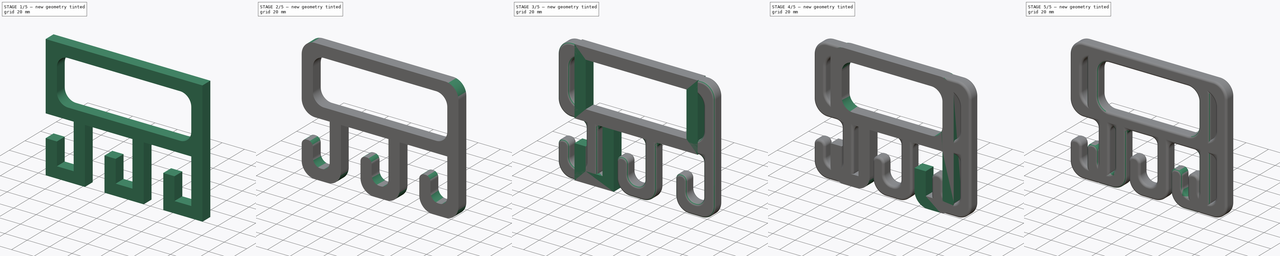
[diagram: build sequence overview — one tinted view per stage of 5, left to right]
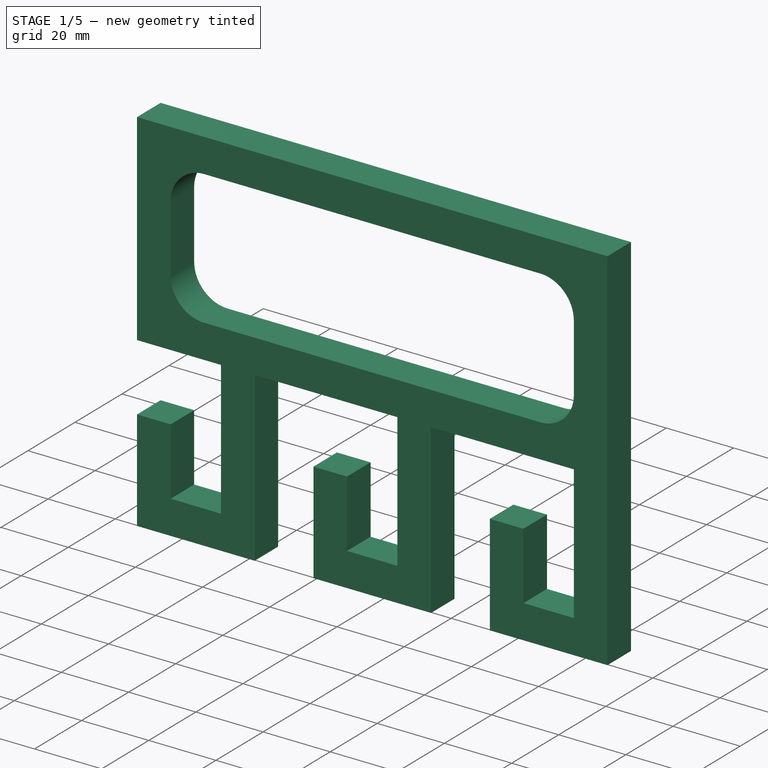
[diagram: stage 1 of 5 — iso view after this stage's code; geometry added in this stage tinted green]
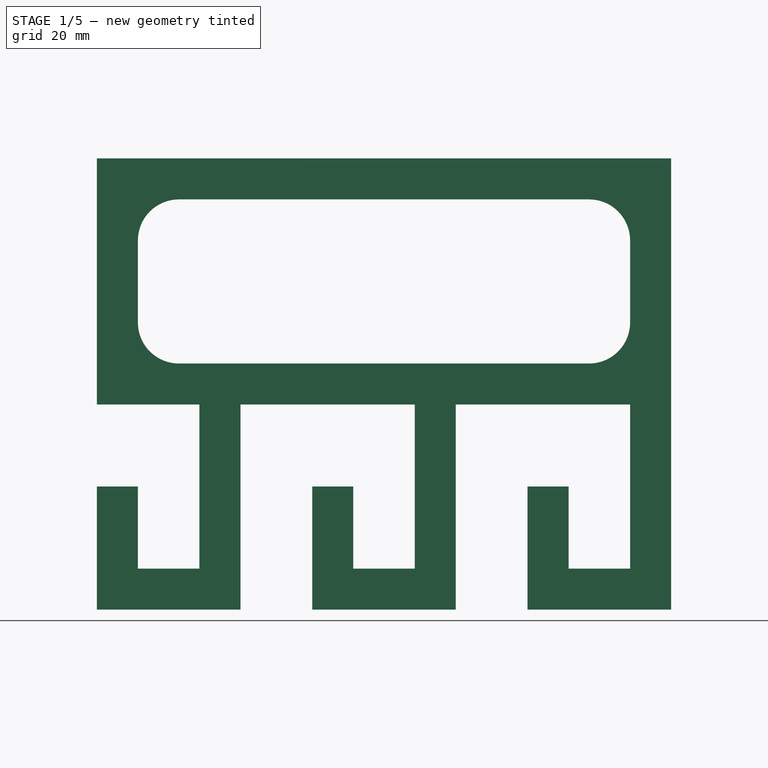
[diagram: stage 1 of 5 — front view after this stage's code; geometry added in this stage tinted green]
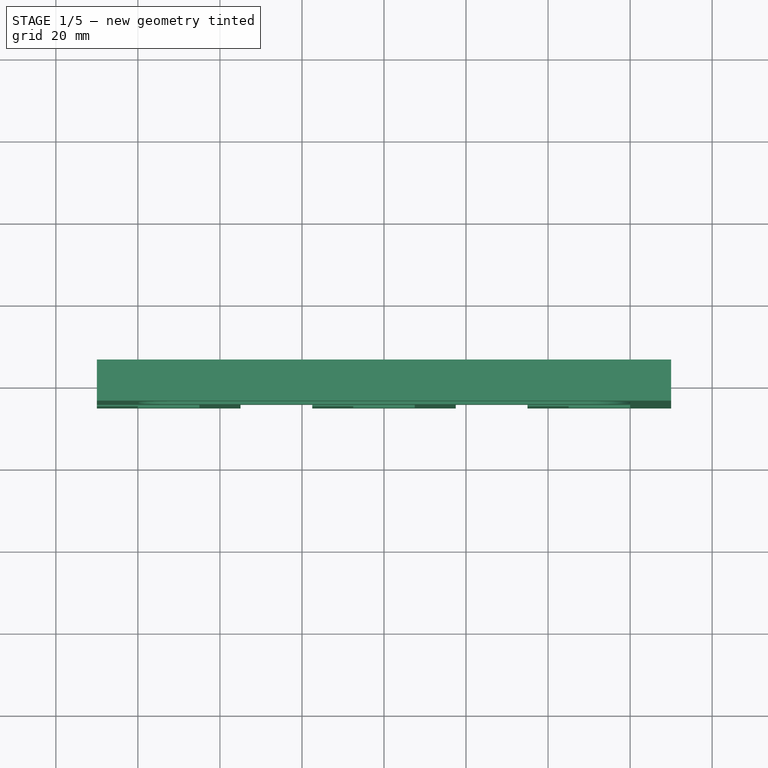
[diagram: stage 1 of 5 — top view after this stage's code; geometry added in this stage tinted green]
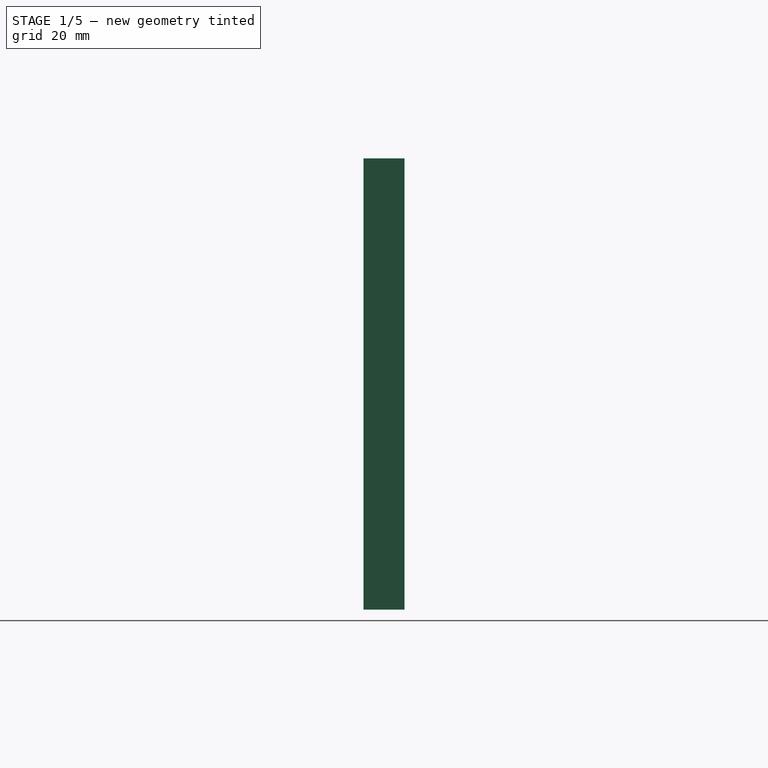
[diagram: stage 1 of 5 — right view after this stage's code; geometry added in this stage tinted green]
FCSTD DOCUMENT  (FreeCAD 0.18.4R)
Label: Shopping Handle x2 x3
Comment: Bag Holder - Shopping Handle\nby ivanseidel July 13, 2012\n\nhttps://www.thingiverse.com/thing:26767
License: CreativeCommons Attribution
LicenseURL: http://creativecommons.org/licenses/by/4.0/
objects: PartDesign::Fillet×12, Sketcher::SketchObject×4, PartDesign::Pad×4, PartDesign::LinearPattern×2, PartDesign::Body×2, App::Part×1
note: 28 computed .brp shape members not serialized (recipe doc carries the construction recipe); baked Part::Feature solids carry a one-line shape summary decoded from their .brp

FEATURE [Sketcher::SketchObject] Sketch002
  MapMode = 5
  Placement = pos=(0,0,0) rot=(1,0,0;1.5708rad)
  Support = -> [XZ_Plane002]
  sketch-geometry (12):
    g0: LineSegment StartX=-70 StartY=0 StartZ=0 EndX=70 EndY=0 EndZ=0
    g1: LineSegment StartX=70 StartY=0 StartZ=0 EndX=70 EndY=60 EndZ=0
    g2: LineSegment StartX=70 StartY=60 StartZ=0 EndX=-70 EndY=60 EndZ=0
    g3: LineSegment StartX=-70 StartY=60 StartZ=0 EndX=-70 EndY=0 EndZ=0
    g4: LineSegment StartX=-60 StartY=50 StartZ=0 EndX=60 EndY=50 EndZ=0
    g5: LineSegment StartX=60 StartY=50 StartZ=0 EndX=60 EndY=10 EndZ=0
    g6: LineSegment StartX=60 StartY=10 StartZ=0 EndX=-60 EndY=10 EndZ=0
    g7: LineSegment StartX=-60 StartY=10 StartZ=0 EndX=-60 EndY=50 EndZ=0
    g8: LineSegment [constr] StartX=60 StartY=0 StartZ=0 EndX=60 EndY=10 EndZ=0
    g9: LineSegment [constr] StartX=60 StartY=10 StartZ=0 EndX=70 EndY=10 EndZ=0
    g10: LineSegment [constr] StartX=-70 StartY=50 StartZ=0 EndX=-60 EndY=50 EndZ=0
    g11: LineSegment [constr] StartX=-60 StartY=50 StartZ=0 EndX=-60 EndY=60 EndZ=0
  constraints (35):
    c: Coincident(g0,g1)
    c: Coincident(g1,g2)
    c: Coincident(g2,g3)
    c: Coincident(g3,g0)
    c: Horizontal(g0)
    c: Horizontal(g2)
    c: Vertical(g1)
    c: Vertical(g3)
    c: Symmetric(g0,g0,g-1)
    c: DistanceX(g0,g0) = 140
    c: DistanceY(g3,g3) = 60
    c: Coincident(g4,g5)
    c: Coincident(g5,g6)
    c: Coincident(g6,g7)
    c: Coincident(g7,g4)
    c: Horizontal(g4)
    c: Horizontal(g6)
    c: Vertical(g5)
    c: Vertical(g7)
    c: PointOnObject(g8,g0)
    c: Coincident(g8,g5)
    c: Vertical(g8)
    c: Coincident(g8,g9)
    c: PointOnObject(g9,g1)
    c: Horizontal(g9)
    c: PointOnObject(g10,g3)
    c: Coincident(g10,g4)
    c: Coincident(g10,g11)
    c: PointOnObject(g11,g2)
    c: Vertical(g11)
    c: Horizontal(g10)
    c: Equal(g9,g8)
    c: Equal(g8,g10)
    c: Equal(g10,g11)
    c: DistanceX(g10,g10) = 10
FEATURE [PartDesign::Pad] Pad003
  Length = 10
  Length2 = 100
  Midplane = true
  Placement = pos=(0,0,0) rot=(1,0,0;1.5708rad)
  Profile = -> Sketch002
  Refine = true
  Type = 0
FEATURE [Sketcher::SketchObject] Sketch003
  ExternalGeometry = -> [Pad003]
  MapMode = 5
  Placement = pos=(0,0,0) rot=(1,0,0;1.5708rad)
  Support = -> [XZ_Plane002]
  sketch-geometry (9):
    g0: LineSegment StartX=-35 StartY=0 StartZ=0 EndX=-45 EndY=0 EndZ=0
    g1: LineSegment StartX=-45 StartY=0 StartZ=0 EndX=-45 EndY=-40 EndZ=0
    g2: LineSegment StartX=-45 StartY=-40 StartZ=0 EndX=-60 EndY=-40 EndZ=0
    g3: LineSegment StartX=-60 StartY=-40 StartZ=0 EndX=-60 EndY=-20 EndZ=0
    g4: LineSegment StartX=-60 StartY=-20 StartZ=0 EndX=-70 EndY=-20 EndZ=0
    g5: LineSegment StartX=-70 StartY=-20 StartZ=0 EndX=-70 EndY=-50 EndZ=0
    g6: LineSegment StartX=-70 StartY=-50 StartZ=0 EndX=-35 EndY=-50 EndZ=0
    g7: LineSegment StartX=-35 StartY=-50 StartZ=0 EndX=-35 EndY=0 EndZ=0
    g8: LineSegment [constr] StartX=-45 StartY=-40 StartZ=0 EndX=-45 EndY=-50 EndZ=0
  constraints (28):
    c: PointOnObject(g0,g-1)
    c: Horizontal(g0)
    c: Coincident(g0,g1)
    c: Vertical(g1)
    c: Coincident(g1,g2)
    c: Horizontal(g2)
    c: Coincident(g2,g3)
    c: Vertical(g3)
    c: Coincident(g3,g4)
    c: Horizontal(g4)
    c: Coincident(g4,g5)
    c: Vertical(g5)
    c: Coincident(g5,g6)
    c: Horizontal(g6)
    c: Coincident(g6,g7)
    c: Coincident(g7,g0)
    c: Vertical(g7)
    c: Equal(g4,g0)
    c: DistanceX(g4,g4) = 10
    c: DistanceX(g2,g2) = 15
    c: Coincident(g1,g8)
    c: Vertical(g8)
    c: Equal(g4,g8)
    c: PointOnObject(g8,g6)
    c: Equal(g0,g8)
    c: Vertical(g4,g-3)
    c: DistanceY(g7,g7) = 50
    c: DistanceY(g5,g5) = 30
FEATURE [PartDesign::Pad] Pad002
  BaseFeature = -> Pad003
  Length = 10
  Length2 = 100
  Midplane = true
  Placement = pos=(0,0,0) rot=(1,0,0;1.5708rad)
  Profile = -> Sketch003
  Refine = true
  Type = 0
FEATURE [PartDesign::LinearPattern] LinearPattern001
  BaseFeature = -> Pad002
  Direction = -> Sketch003 [H_Axis]
  Length = 105
  Occurrences = 3
  Originals = -> [Pad002]
  Placement = pos=(0,0,0) rot=(1,0,0;1.5708rad)
  Refine = true
FEATURE [PartDesign::Fillet] Fillet006
  Base = -> LinearPattern001 [Edge87,Edge83,Edge82,Edge85]
  BaseFeature = -> LinearPattern001
  Placement = pos=(0,0,0) rot=(1,0,0;1.5708rad)
  Radius = 10
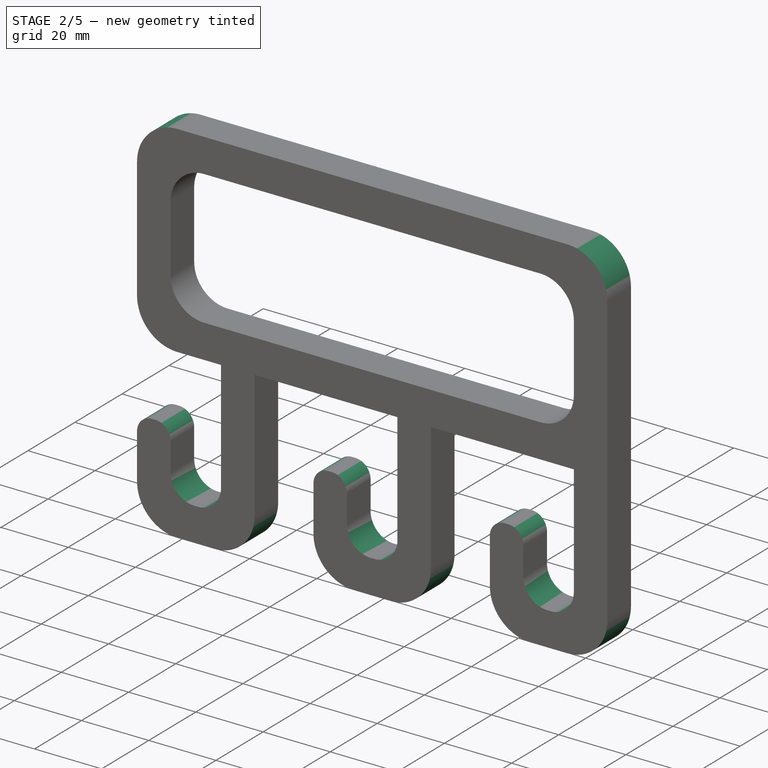
[diagram: stage 2 of 5 — iso view after this stage's code; geometry added in this stage tinted green]
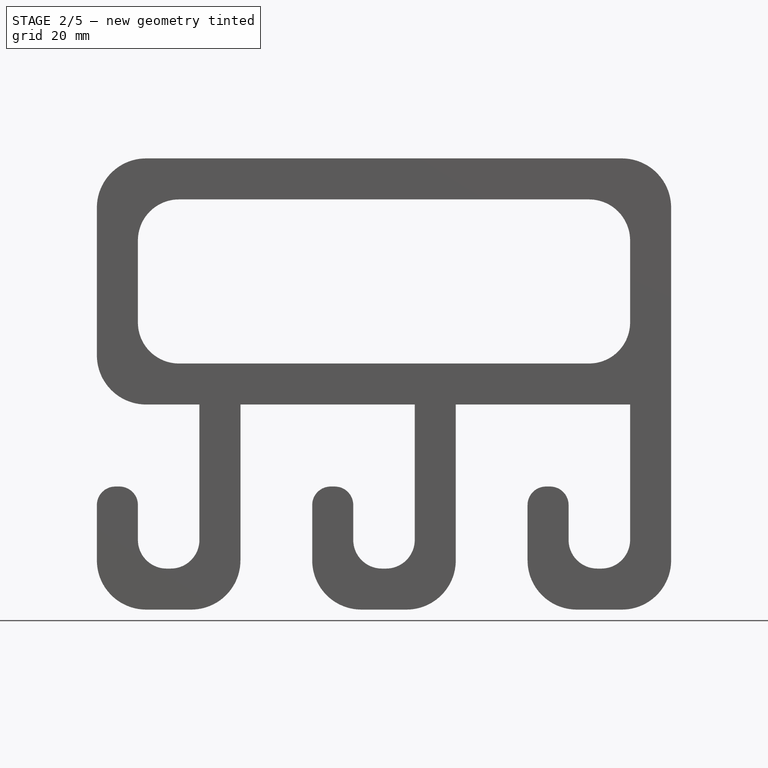
[diagram: stage 2 of 5 — front view after this stage's code; geometry added in this stage tinted green]
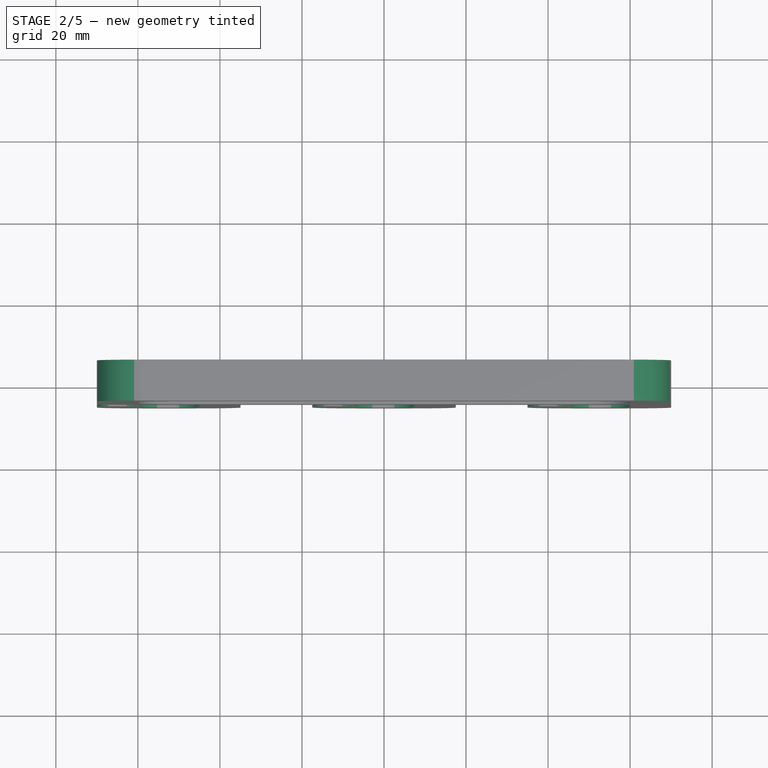
[diagram: stage 2 of 5 — top view after this stage's code; geometry added in this stage tinted green]
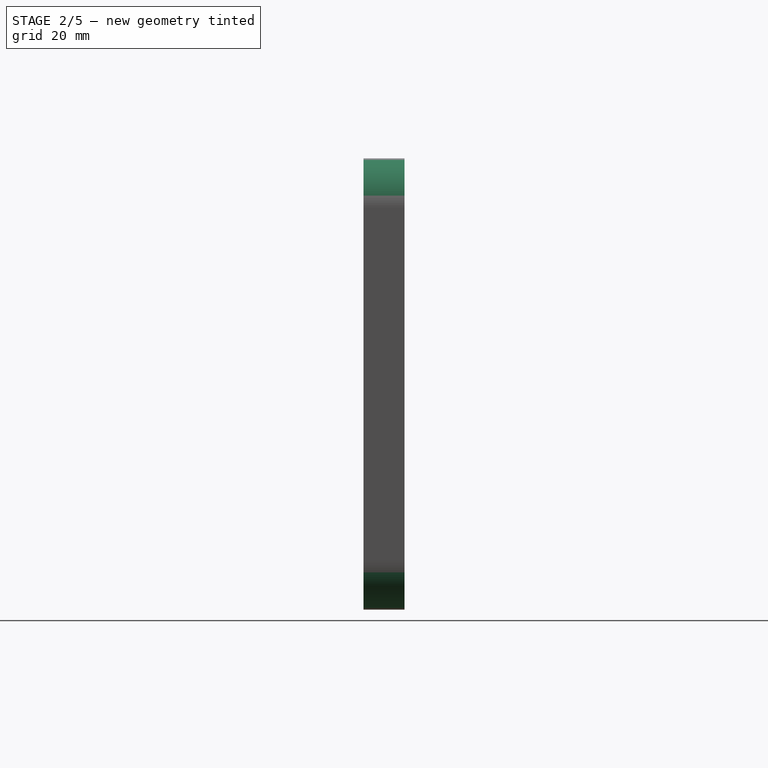
[diagram: stage 2 of 5 — right view after this stage's code; geometry added in this stage tinted green]
FEATURE [PartDesign::Fillet] Fillet007
  Base = -> Fillet006 [Edge90,Edge92,Edge76,Edge74,Edge60,Edge59,Edge56,Edge54,Edge53]
  BaseFeature = -> Fillet006
  Placement = pos=(0,0,0) rot=(1,0,0;1.5708rad)
  Radius = 12
FEATURE [PartDesign::Fillet] Fillet008
  Base = -> Fillet007 [Edge95,Edge91,Edge93,Edge89,Edge49,Edge53]
  BaseFeature = -> Fillet007
  Placement = pos=(0,0,0) rot=(1,0,0;1.5708rad)
  Radius = 7
FEATURE [PartDesign::Fillet] Fillet009
  Base = -> Fillet008 [Edge69,Edge65,Edge117,Edge113,Edge95,Edge99]
  BaseFeature = -> Fillet008
  Placement = pos=(0,0,0) rot=(1,0,0;1.5708rad)
  Radius = 4.5
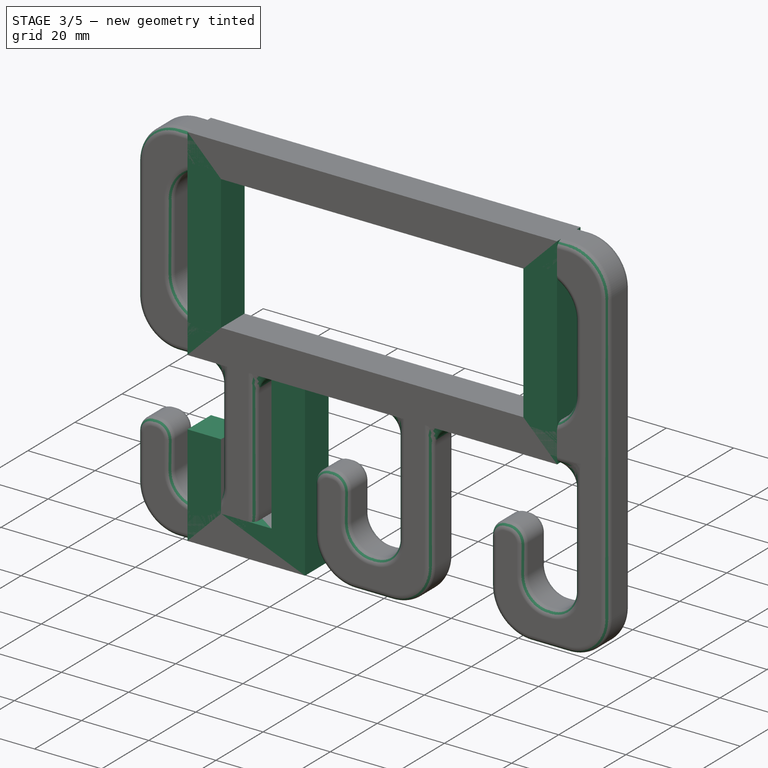
[diagram: stage 3 of 5 — iso view after this stage's code; geometry added in this stage tinted green]
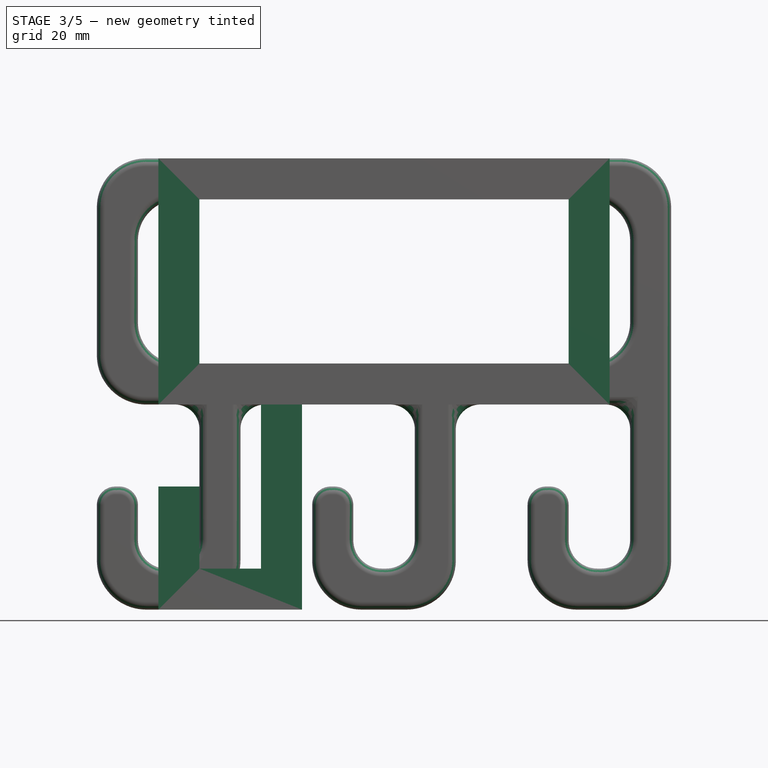
[diagram: stage 3 of 5 — front view after this stage's code; geometry added in this stage tinted green]
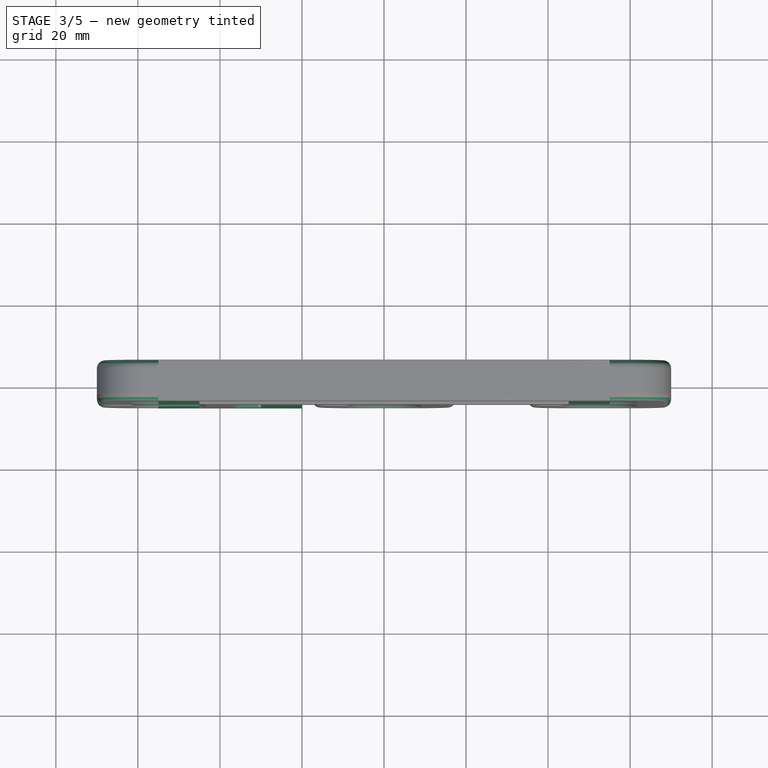
[diagram: stage 3 of 5 — top view after this stage's code; geometry added in this stage tinted green]
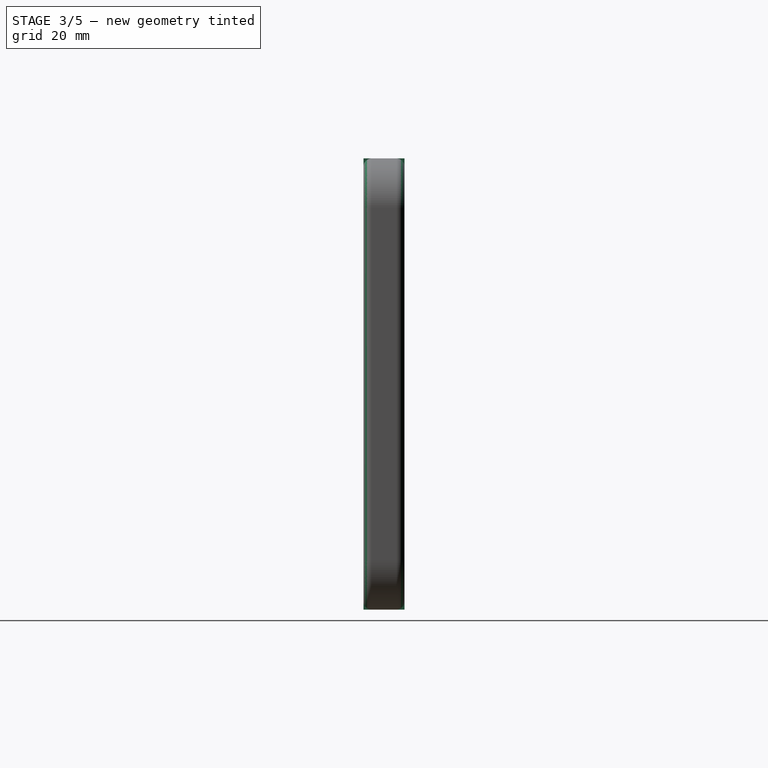
[diagram: stage 3 of 5 — right view after this stage's code; geometry added in this stage tinted green]
FEATURE [Sketcher::SketchObject] Sketch
  MapMode = 5
  Placement = pos=(0,0,0) rot=(1,0,0;1.5708rad)
  Support = -> [XZ_Plane001]
  sketch-geometry (12):
    g0: LineSegment StartX=-55 StartY=0 StartZ=0 EndX=55 EndY=0 EndZ=0
    g1: LineSegment StartX=55 StartY=0 StartZ=0 EndX=55 EndY=60 EndZ=0
    g2: LineSegment StartX=55 StartY=60 StartZ=0 EndX=-55 EndY=60 EndZ=0
    g3: LineSegment StartX=-55 StartY=60 StartZ=0 EndX=-55 EndY=0 EndZ=0
    g4: LineSegment StartX=-45 StartY=50 StartZ=0 EndX=45 EndY=50 EndZ=0
    g5: LineSegment StartX=45 StartY=50 StartZ=0 EndX=45 EndY=10 EndZ=0
    g6: LineSegment StartX=45 StartY=10 StartZ=0 EndX=-45 EndY=10 EndZ=0
    g7: LineSegment StartX=-45 StartY=10 StartZ=0 EndX=-45 EndY=50 EndZ=0
    g8: LineSegment [constr] StartX=45 StartY=0 StartZ=0 EndX=45 EndY=10 EndZ=0
    g9: LineSegment [constr] StartX=45 StartY=10 StartZ=0 EndX=55 EndY=10 EndZ=0
    g10: LineSegment [constr] StartX=-55 StartY=50 StartZ=0 EndX=-45 EndY=50 EndZ=0
    g11: LineSegment [constr] StartX=-45 StartY=50 StartZ=0 EndX=-45 EndY=60 EndZ=0
  constraints (35):
    c: Coincident(g0,g1)
    c: Coincident(g1,g2)
    c: Coincident(g2,g3)
    c: Coincident(g3,g0)
    c: Horizontal(g0)
    c: Horizontal(g2)
    c: Vertical(g1)
    c: Vertical(g3)
    c: Symmetric(g0,g0,g-1)
    c: DistanceX(g0,g0) = 110
    c: DistanceY(g3,g3) = 60
    c: Coincident(g4,g5)
    c: Coincident(g5,g6)
    c: Coincident(g6,g7)
    c: Coincident(g7,g4)
    c: Horizontal(g4)
    c: Horizontal(g6)
    c: Vertical(g5)
    c: Vertical(g7)
    c: PointOnObject(g8,g0)
    c: Coincident(g8,g5)
    c: Vertical(g8)
    c: Coincident(g8,g9)
    c: PointOnObject(g9,g1)
    c: Horizontal(g9)
    c: PointOnObject(g10,g3)
    c: Coincident(g10,g4)
    c: Coincident(g10,g11)
    c: PointOnObject(g11,g2)
    c: Vertical(g11)
    c: Horizontal(g10)
    c: Equal(g9,g8)
    c: Equal(g8,g10)
    c: Equal(g10,g11)
    c: DistanceX(g10,g10) = 10
FEATURE [PartDesign::Pad] Pad
  Length = 10
  Length2 = 100
  Midplane = true
  Placement = pos=(0,0,0) rot=(1,0,0;1.5708rad)
  Profile = -> Sketch
  Refine = true
  Type = 0
FEATURE [Sketcher::SketchObject] Sketch001
  ExternalGeometry = -> [Pad]
  MapMode = 5
  Placement = pos=(0,0,0) rot=(1,0,0;1.5708rad)
  Support = -> [XZ_Plane001]
  sketch-geometry (9):
    g0: LineSegment StartX=-20 StartY=0 StartZ=0 EndX=-30 EndY=0 EndZ=0
    g1: LineSegment StartX=-30 StartY=0 StartZ=0 EndX=-30 EndY=-40 EndZ=0
    g2: LineSegment StartX=-30 StartY=-40 StartZ=0 EndX=-45 EndY=-40 EndZ=0
    g3: LineSegment StartX=-45 StartY=-40 StartZ=0 EndX=-45 EndY=-20 EndZ=0
    g4: LineSegment StartX=-45 StartY=-20 StartZ=0 EndX=-55 EndY=-20 EndZ=0
    g5: LineSegment StartX=-55 StartY=-20 StartZ=0 EndX=-55 EndY=-50 EndZ=0
    g6: LineSegment StartX=-55 StartY=-50 StartZ=0 EndX=-20 EndY=-50 EndZ=0
    g7: LineSegment StartX=-20 StartY=-50 StartZ=0 EndX=-20 EndY=0 EndZ=0
    g8: LineSegment [constr] StartX=-30 StartY=-40 StartZ=0 EndX=-30 EndY=-50 EndZ=0
  constraints (28):
    c: PointOnObject(g0,g-1)
    c: Horizontal(g0)
    c: Coincident(g0,g1)
    c: Vertical(g1)
    c: Coincident(g1,g2)
    c: Horizontal(g2)
    c: Coincident(g2,g3)
    c: Vertical(g3)
    c: Coincident(g3,g4)
    c: Horizontal(g4)
    c: Coincident(g4,g5)
    c: Vertical(g5)
    c: Coincident(g5,g6)
    c: Horizontal(g6)
    c: Coincident(g6,g7)
    c: Coincident(g7,g0)
    c: Vertical(g7)
    c: Equal(g4,g0)
    c: DistanceX(g4,g4) = 10
    c: DistanceX(g2,g2) = 15
    c: Coincident(g1,g8)
    c: Vertical(g8)
    c: Equal(g4,g8)
    c: PointOnObject(g8,g6)
    c: Equal(g0,g8)
    c: Vertical(g4,g-3)
    c: DistanceY(g7,g7) = 50
    c: DistanceY(g5,g5) = 30
FEATURE [PartDesign::Pad] Pad001
  BaseFeature = -> Pad
  Length = 10
  Length2 = 100
  Midplane = true
  Placement = pos=(0,0,0) rot=(1,0,0;1.5708rad)
  Profile = -> Sketch001
  Refine = true
  Type = 0
FEATURE [PartDesign::Fillet] Fillet010
  Base = -> Fillet009 [Face57,Face1]
  BaseFeature = -> Fillet009
  Placement = pos=(0,0,0) rot=(1,0,0;1.5708rad)
  Radius = 2
FEATURE [PartDesign::Body] Body  label="2 Bags"
  Group = -> [Sketch,Pad,Sketch001,Pad001,LinearPattern,Fillet,Fillet001,Fillet002,Fillet003,Fillet011,Fillet012]
  Origin = -> Origin001
  Tip = -> Fillet012
FEATURE [PartDesign::Fillet] Fillet013
  Base = -> Fillet010 [Edge216,Edge168,Edge246,Edge219,Edge242]
  BaseFeature = -> Fillet010
  Placement = pos=(0,0,0) rot=(1,0,0;1.5708rad)
  Radius = 6
FEATURE [PartDesign::Body] Body001  label="3 Bags"
  Group = -> [Sketch002,Pad003,Sketch003,Pad002,LinearPattern001,Fillet006,Fillet007,Fillet008,Fillet009,Fillet010,Fillet013]
  Origin = -> Origin002
  Placement = pos=(148,0,0) rot=(0,0,1;0rad)
  Tip = -> Fillet013
FEATURE [App::Part] Part  label="Shopping Handle"
  Group = -> [Body,Body001]
  Origin = -> Origin
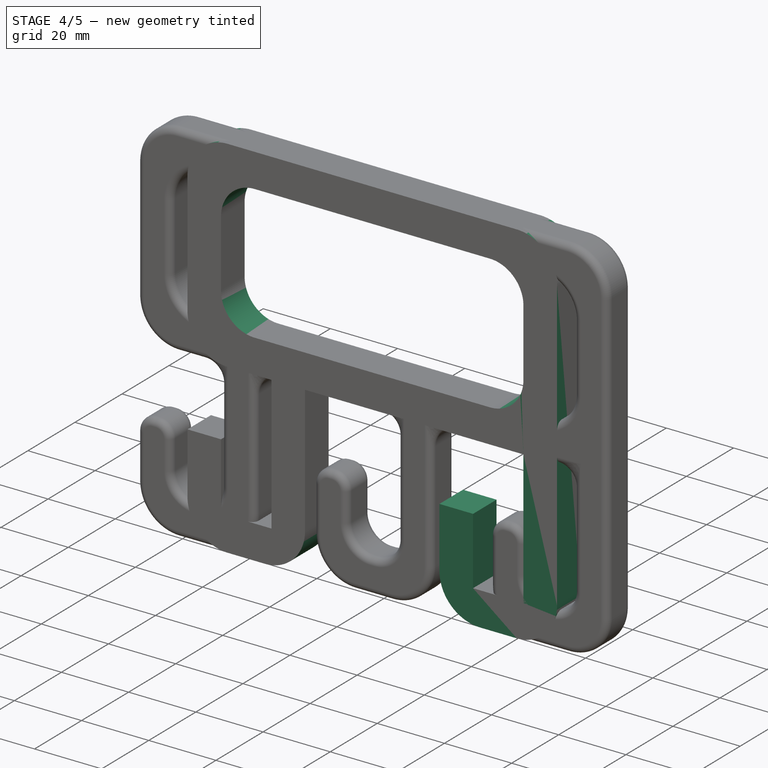
[diagram: stage 4 of 5 — iso view after this stage's code; geometry added in this stage tinted green]
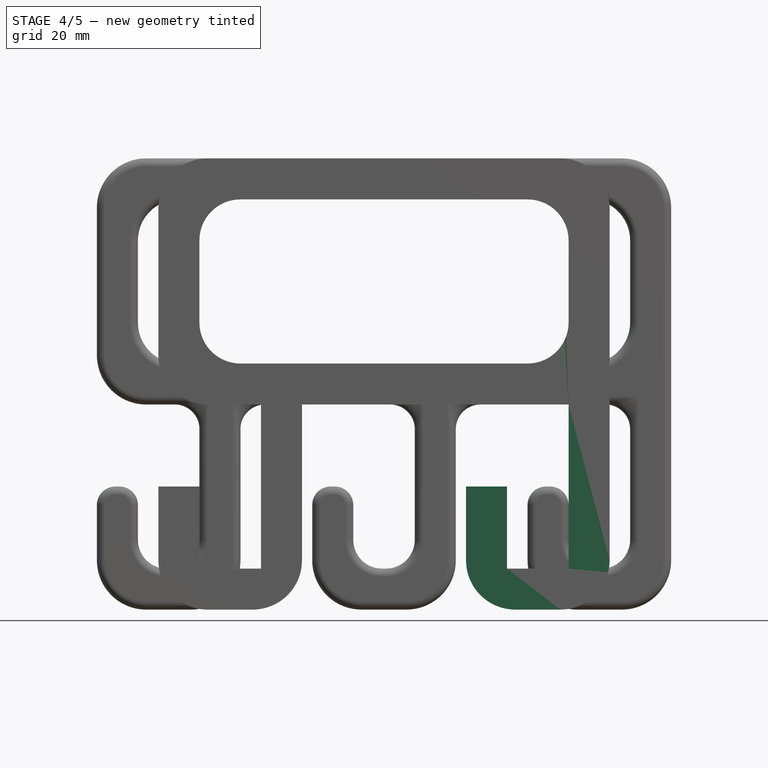
[diagram: stage 4 of 5 — front view after this stage's code; geometry added in this stage tinted green]
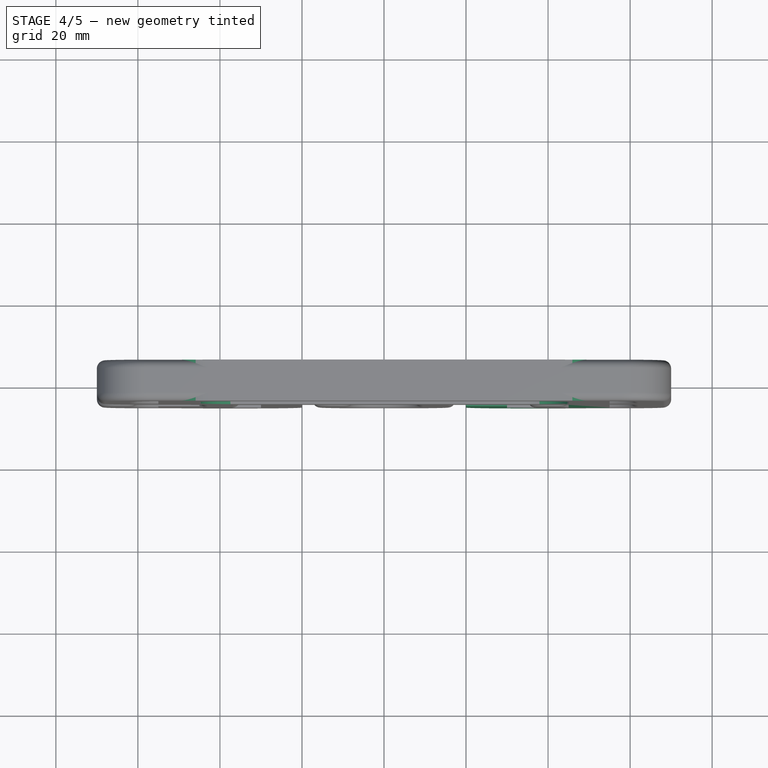
[diagram: stage 4 of 5 — top view after this stage's code; geometry added in this stage tinted green]
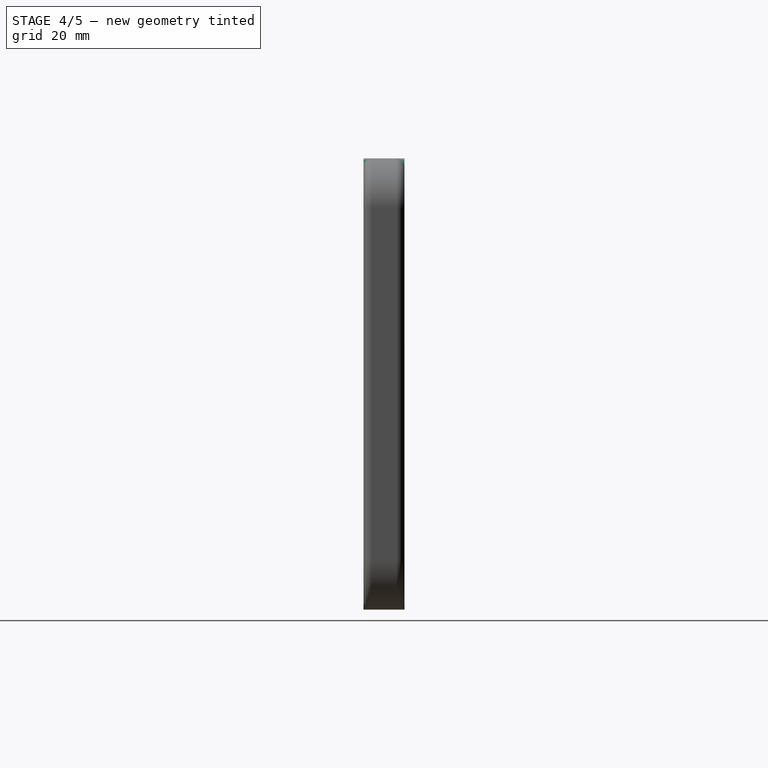
[diagram: stage 4 of 5 — right view after this stage's code; geometry added in this stage tinted green]
FEATURE [PartDesign::LinearPattern] LinearPattern
  BaseFeature = -> Pad001
  Direction = -> Sketch001 [H_Axis]
  Length = 75
  Occurrences = 2
  Originals = -> [Pad001]
  Placement = pos=(0,0,0) rot=(1,0,0;1.5708rad)
  Refine = true
FEATURE [PartDesign::Fillet] Fillet
  Base = -> LinearPattern [Edge59,Edge58,Edge61,Edge63]
  BaseFeature = -> LinearPattern
  Placement = pos=(0,0,0) rot=(1,0,0;1.5708rad)
  Radius = 10
FEATURE [PartDesign::Fillet] Fillet001
  Base = -> Fillet [Edge45,Edge46,Edge48,Edge51,Edge52,Edge66,Edge68]
  BaseFeature = -> Fillet
  Placement = pos=(0,0,0) rot=(1,0,0;1.5708rad)
  Radius = 12
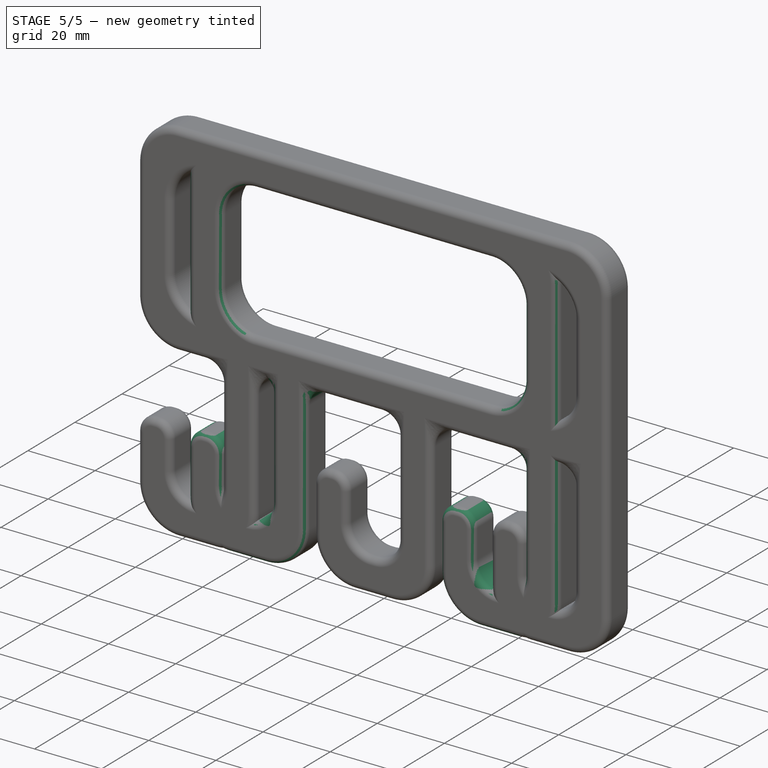
[diagram: stage 5 of 5 — iso view after this stage's code; geometry added in this stage tinted green]
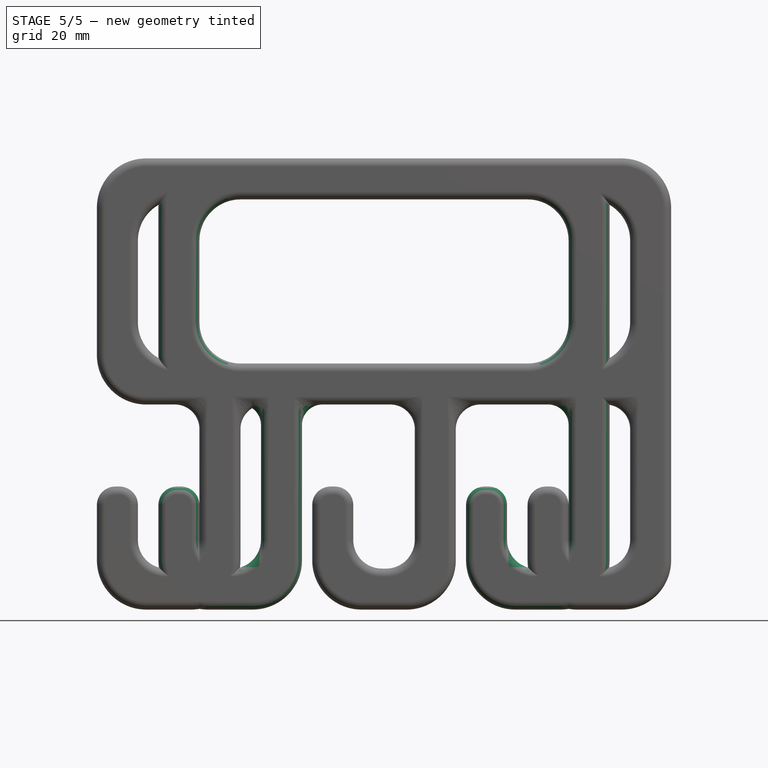
[diagram: stage 5 of 5 — front view after this stage's code; geometry added in this stage tinted green]
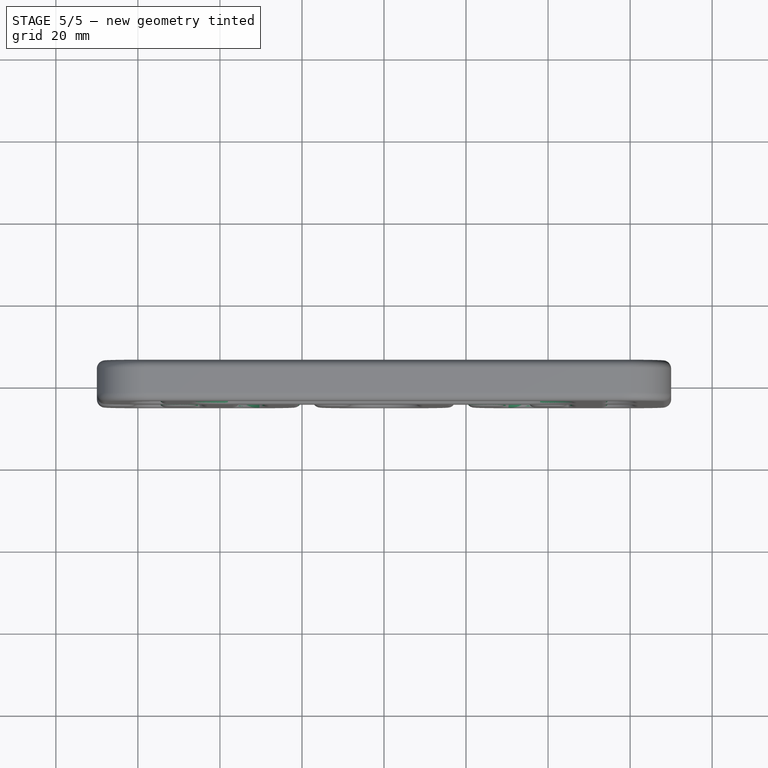
[diagram: stage 5 of 5 — top view after this stage's code; geometry added in this stage tinted green]
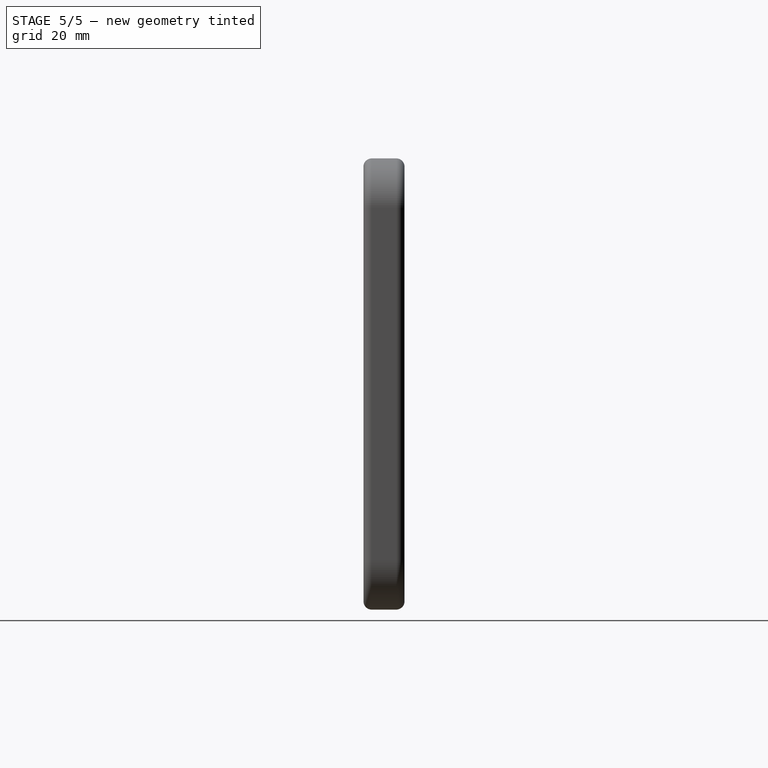
[diagram: stage 5 of 5 — right view after this stage's code; geometry added in this stage tinted green]
FEATURE [PartDesign::Fillet] Fillet002
  Base = -> Fillet001 [Edge79,Edge39,Edge43,Edge81]
  BaseFeature = -> Fillet001
  Placement = pos=(0,0,0) rot=(1,0,0;1.5708rad)
  Radius = 7
FEATURE [PartDesign::Fillet] Fillet003
  Base = -> Fillet002 [Edge83,Edge87,Edge53,Edge57]
  BaseFeature = -> Fillet002
  Placement = pos=(0,0,0) rot=(1,0,0;1.5708rad)
  Radius = 4.5
FEATURE [PartDesign::Fillet] Fillet011
  Base = -> Fillet003 [Face43,Face1]
  BaseFeature = -> Fillet003
  Placement = pos=(0,0,0) rot=(1,0,0;1.5708rad)
  Radius = 2
FEATURE [PartDesign::Fillet] Fillet012
  Base = -> Fillet011 [Edge126,Edge177,Edge174]
  BaseFeature = -> Fillet011
  Placement = pos=(0,0,0) rot=(1,0,0;1.5708rad)
  Radius = 5
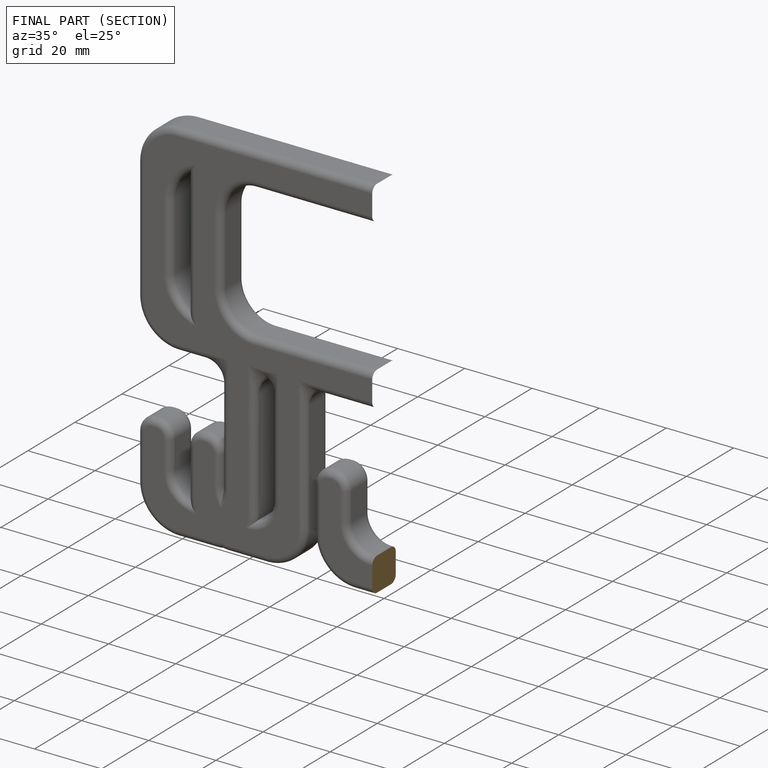
[diagram: finished part — half-section view (interior)]
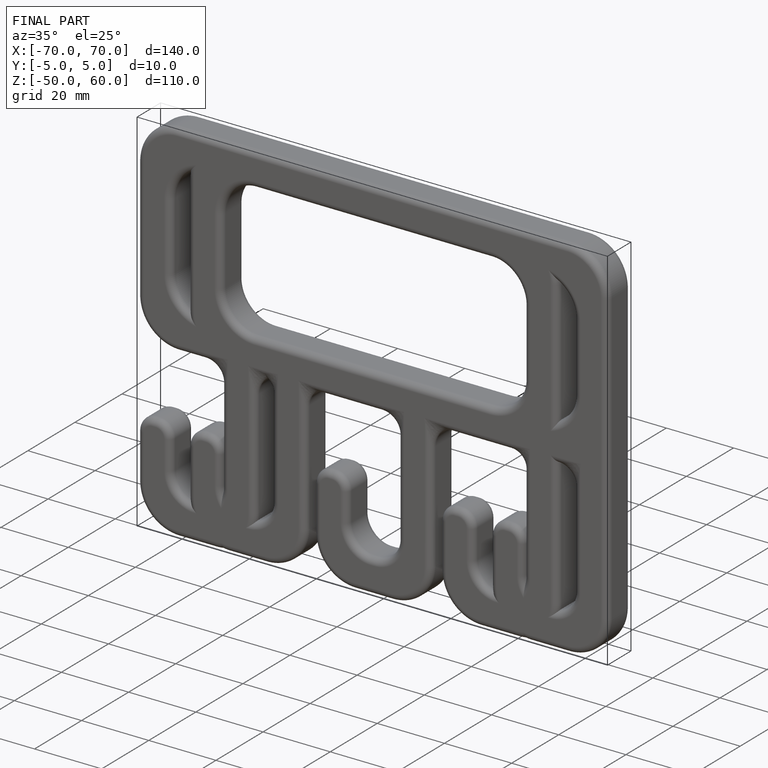
[diagram: finished part — iso view with bounding-box wireframe]
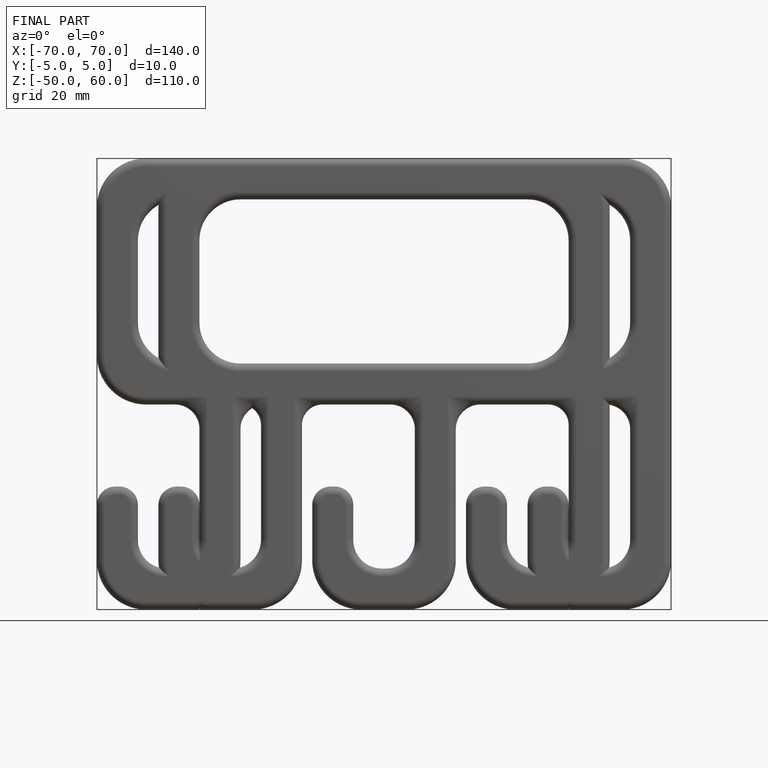
[diagram: finished part — front view with bounding-box wireframe]
